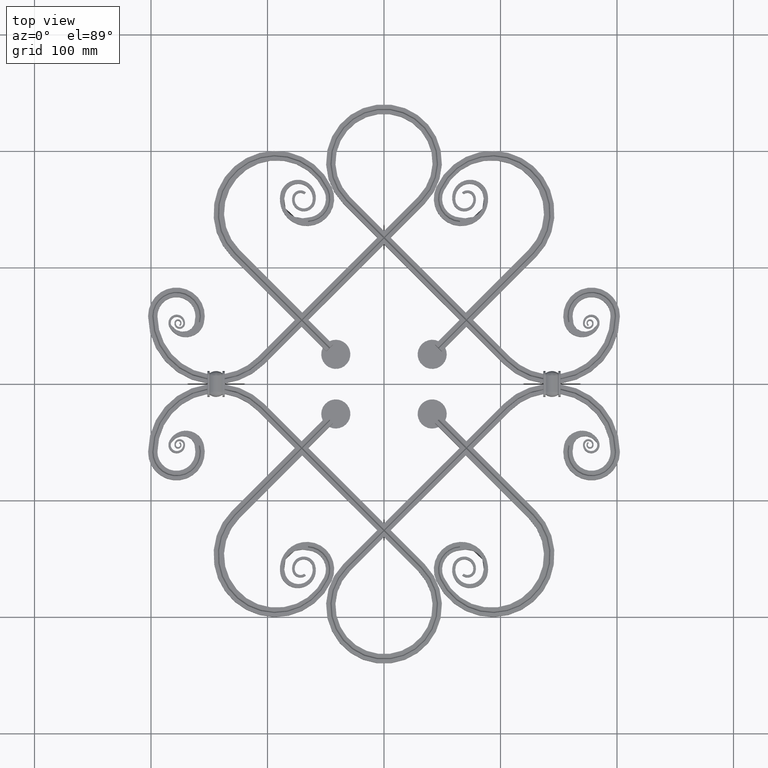
[diagram: clean part render]
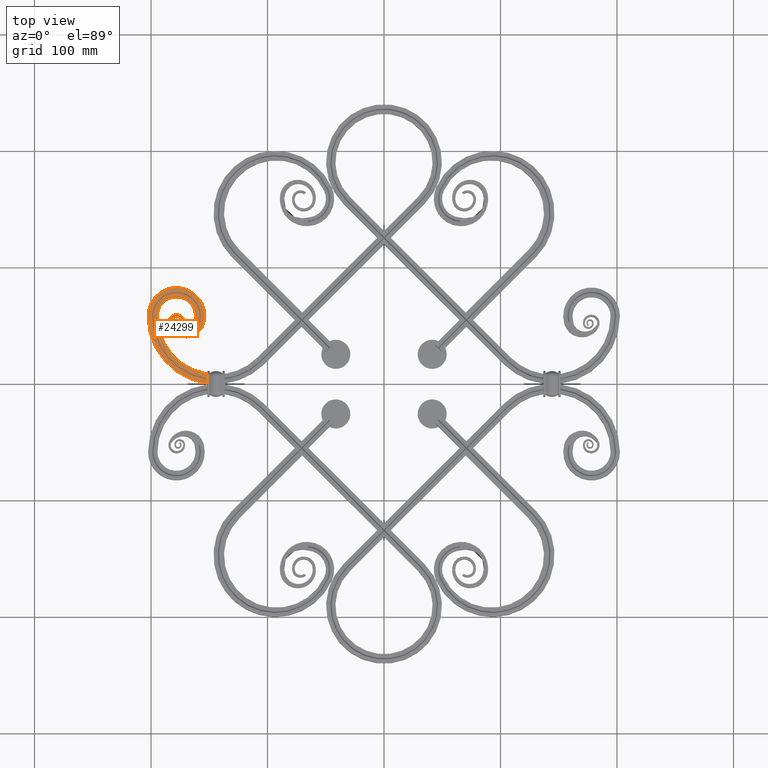
[diagram: same view with one face highlighted and labeled with its STEP entity id]
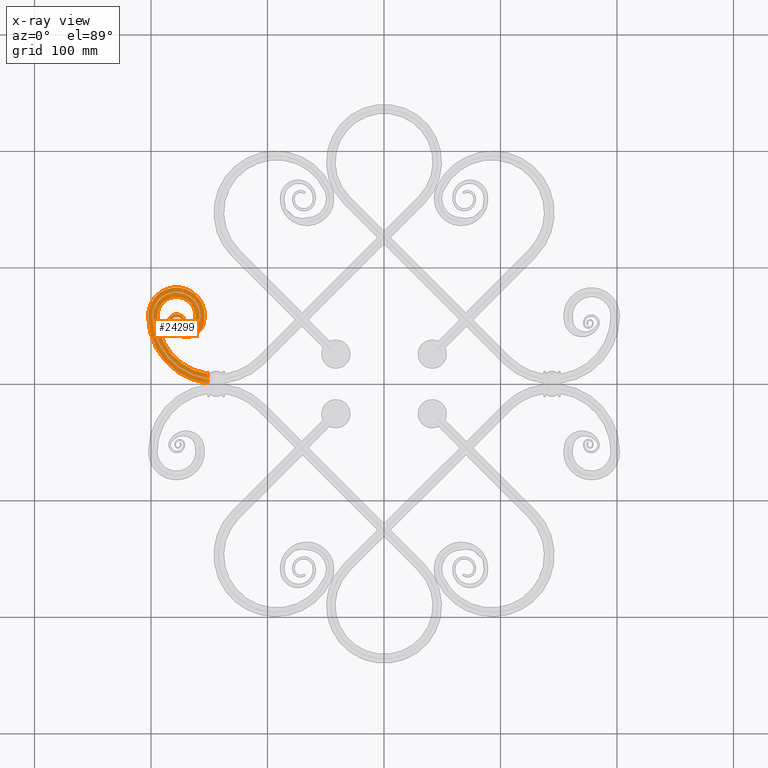
[diagram: x-ray of the same camera — body ghosted, the highlighted face saturated]
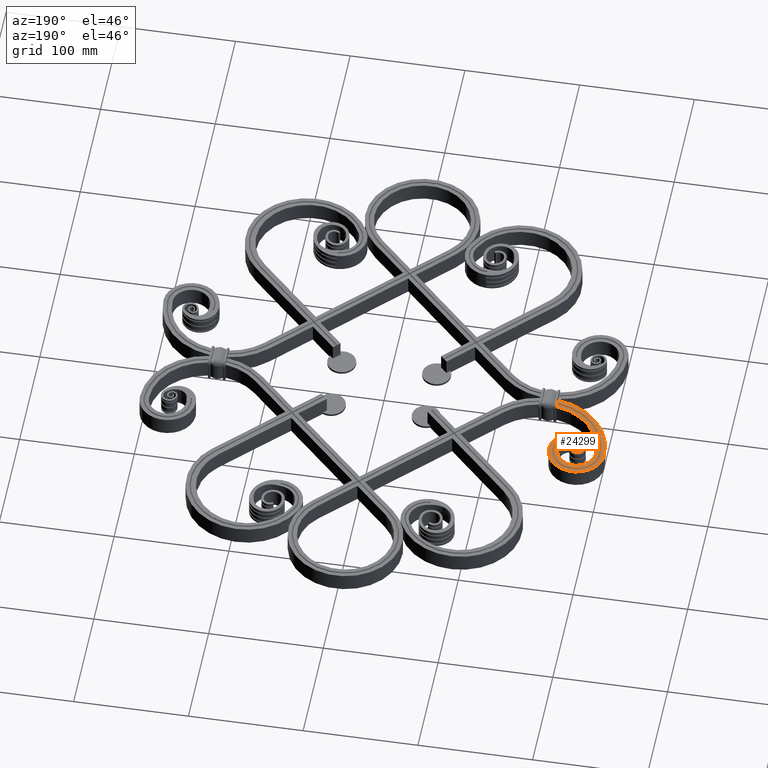
[diagram: same view with one face highlighted and labeled with its STEP entity id]
A machine part, top view. The second image highlights one B-rep face of the part: STEP entity #24299.
The next image is the same camera in x-ray: the body ghosted, the highlighted face saturated — about 0% of this face is hidden behind the body in this view.
A second angle (auxiliary view) of the same face is appended — the face is thin or edge-on in the first view.
In plain terms, the highlighted planar face has unit normal (-0, 0, -1).
Its self-contained STEP definition (entity closure, byte-faithful):
#90 = CARTESIAN_POINT ( 'NONE',  ( -154.7081428451901672, 51.96011843031541133, 7.999999999999845457 ) ) ;
#421 = VECTOR ( 'NONE', #57210, 1000.000000000000114 ) ;
#983 = CARTESIAN_POINT ( 'NONE',  ( -199.0773502691895942, 58.33630944788937711, 8.000000000000000000 ) ) ;
#1600 = CARTESIAN_POINT ( 'NONE',  ( -175.1568532153906403, 49.94557511306874176, 8.000000000000000000 ) ) ;
#1737 = CARTESIAN_POINT ( 'NONE',  ( -174.7150000176385163, 50.28066122756351319, 8.000000000000001776 ) ) ;
#1838 = CARTESIAN_POINT ( 'NONE',  ( -176.0929426898080408, 57.47724294837077252, 8.000000000000000000 ) ) ;
#2029 = CARTESIAN_POINT ( 'NONE',  ( -172.7827831079378882, 50.25968735084335748, 8.000000000000000000 ) ) ;
#2178 = ORIENTED_EDGE ( 'NONE', *, *, #35233, .T. ) ;
#2212 = CARTESIAN_POINT ( 'NONE',  ( -151.4099999999999966, 6.999999999999968026, 8.000000000000000000 ) ) ;
#2292 = DIRECTION ( 'NONE',  ( 0.000000000000000000, 0.000000000000000000, 1.000000000000000000 ) ) ;
#2329 = CARTESIAN_POINT ( 'NONE',  ( -185.0650300360007350, 52.84970780580330540, 8.000000000000001776 ) ) ;
#2443 = CARTESIAN_POINT ( 'NONE',  ( -178.1787289656059841, 58.33630944788989581, 8.000000000000000000 ) ) ;
#2526 = CARTESIAN_POINT ( 'NONE',  ( -175.3102955841640949, 55.03979556280543761, 8.000000000000000000 ) ) ;
#2601 = CARTESIAN_POINT ( 'NONE',  ( -163.9449839496908510, 48.90022599089232358, 8.000000000000001776 ) ) ;
#2727 = CARTESIAN_POINT ( 'NONE',  ( -184.3112738001923958, 49.22370615443942654, 8.000000000000000000 ) ) ;
#2808 = CARTESIAN_POINT ( 'NONE',  ( -162.4283269053816809, 54.05744007392772232, 7.999999999999894307 ) ) ;
#2826 = CARTESIAN_POINT ( 'NONE',  ( -178.5278086268865252, 51.11411714257997119, 7.999999999999996447 ) ) ;
#2942 = DIRECTION ( 'NONE',  ( 0.000000000000000000, 0.000000000000000000, 1.000000000000000000 ) ) ;
#3031 = CARTESIAN_POINT ( 'NONE',  ( -178.5727181387648272, 52.89737530895046547, 8.000000000000007105 ) ) ;
#3203 = CIRCLE ( 'NONE', #22633, 53.75895917870027318 ) ;
#3392 = AXIS2_PLACEMENT_3D ( 'NONE', #11155, #29003, #42006 ) ;
#3406 = CARTESIAN_POINT ( 'NONE',  ( -182.5100443731335531, 50.09294291798390475, 8.000000000000000000 ) ) ;
#3492 = EDGE_CURVE ( 'NONE', #56943, #21930, #24650, .T. ) ;
#4034 = CARTESIAN_POINT ( 'NONE',  ( -175.4377832328634099, 48.82063189121792846, 8.000000000000000000 ) ) ;
#4198 = CIRCLE ( 'NONE', #46287, 19.74392076520437200 ) ;
#4228 = CARTESIAN_POINT ( 'NONE',  ( -178.6678980498967633, 52.30129884058442258, 8.000000000000000000 ) ) ;
#4325 = CARTESIAN_POINT ( 'NONE',  ( -202.5000000000000000, 58.33630944788963291, 8.000000000000000000 ) ) ;
#4373 = ORIENTED_EDGE ( 'NONE', *, *, #10844, .T. ) ;
#4405 = CARTESIAN_POINT ( 'NONE',  ( -175.7150948333174654, 50.77525354234989408, 8.000000000000000000 ) ) ;
#4470 = ORIENTED_EDGE ( 'NONE', *, *, #57867, .F. ) ;
#5065 = B_SPLINE_CURVE_WITH_KNOTS ( 'NONE', 3,
 ( #10147, #29181, #1737, #10347, #56164, #33793, #6318, #5530, #51181, #37587, #42178, #46745, #2526, #43556, #56941, #20117, #6721, #6921, #11142, #25511, #47736, #39178, #11734, #7328, #16084, #34572, #52179, #48134, #16278, #38976, #29762, #48332, #11337, #11923, #11529, #57320, #30155, #52368, #20904, #24924, #29579, #43752, #20710, #39379, #52774, #25320, #15496, #43357, #34373, #47538, #24715, #15897, #2329, #29959, #56751, #2727 ),
 .UNSPECIFIED., .F., .F.,
 ( 4, 1, 1, 1, 1, 1, 1, 1, 1, 1, 1, 1, 1, 1, 1, 1, 1, 1, 1, 1, 1, 1, 1, 1, 1, 1, 1, 1, 1, 1, 1, 1, 1, 1, 1, 1, 1, 1, 1, 1, 1, 1, 1, 1, 1, 1, 1, 1, 1, 1, 1, 1, 1, 4 ),
 ( 0.000000000000000000, 0.01010302735505683863, 0.02023997654640571908, 0.03038392907417127725, 0.04047239337401119935, 0.05045738992200122369, 0.06038478629739164882, 0.07040070167941844814, 0.08046539312077433115, 0.09048825828294783380, 0.1003885645702420198, 0.1101917311375887332, 0.1200791724761820778, 0.1300300448075559223, 0.1399565951538640496, 0.1497710845239766664, 0.1594613483907861007, 0.1692222080798727601, 0.1790653176941695013, 0.1937633259593063428, 0.2084007722670631613, 0.2240955142588009485, 0.2398757235699856827, 0.2556445984775562730, 0.2713162066101842962, 0.2870170997505963051, 0.3026877023173343839, 0.3182495112426151906, 0.3338250041553817993, 0.3494146412877856545, 0.3649206880682623333, 0.3803588793111512545, 0.3958462897012593462, 0.4112943334018647201, 0.4266284004628841942, 0.4496441851050169691, 0.4725613048083287526, 0.4959254221207841096, 0.5202745282742220478, 0.5447840865031983171, 0.5691682819327615883, 0.6057142022157168126, 0.6419649666505774510, 0.6781207494120581325, 0.7143688702033148541, 0.7384331340427807699, 0.7623272295262145670, 0.7862762874309763284, 0.8222273848333736534, 0.8579115078117454107, 0.8934059620924214018, 0.9290542696022388025, 0.9644571166407900353, 1.000000000000000000 ),
 .UNSPECIFIED. ) ;
#5530 = CARTESIAN_POINT ( 'NONE',  ( -173.8390262364313799, 52.80782366361454905, 7.999999999999998224 ) ) ;
#5880 = EDGE_CURVE ( 'NONE', #40579, #28548, #56343, .T. ) ;
#6318 = CARTESIAN_POINT ( 'NONE',  ( -173.8191720590432112, 52.25009247691016157, 8.000000000000001776 ) ) ;
#6421 = CARTESIAN_POINT ( 'NONE',  ( -172.9721614066936297, 54.86129037264295505, 8.000000000000001776 ) ) ;
#6721 = CARTESIAN_POINT ( 'NONE',  ( -177.4410032705491460, 55.38974238864512500, 7.999999999999998224 ) ) ;
#6921 = CARTESIAN_POINT ( 'NONE',  ( -177.9766886981277310, 55.22666356842332647, 8.000000000000001776 ) ) ;
#7019 = CARTESIAN_POINT ( 'NONE',  ( -183.0415395848972082, 51.35284791595437781, 7.999999999999994671 ) ) ;
#7328 = CARTESIAN_POINT ( 'NONE',  ( -179.9022121383267176, 51.57976650355445969, 8.000000000000008882 ) ) ;
#7397 = CARTESIAN_POINT ( 'NONE',  ( -171.2819406207991335, 44.73866639309839144, 8.000000000000000000 ) ) ;
#7422 = CARTESIAN_POINT ( 'NONE',  ( -177.5738956098233530, 49.63147326311165841, 7.999999999999998224 ) ) ;
#7617 = CARTESIAN_POINT ( 'NONE',  ( -178.3021778329556639, 50.56602092502825485, 8.000000000000000000 ) ) ;
#8717 = ORIENTED_EDGE ( 'NONE', *, *, #13098, .F. ) ;
#8793 = CIRCLE ( 'NONE', #10829, 54.91365971707951132 ) ;
#8812 = CARTESIAN_POINT ( 'NONE',  ( -174.9217459866065951, 51.96490877128442776, 7.999999999999996447 ) ) ;
#9075 = CARTESIAN_POINT ( 'NONE',  ( -159.7610745799950962, 43.87165270378434911, 8.000000000000001776 ) ) ;
#9407 = EDGE_CURVE ( 'NONE', #55227, #20654, #5065, .T. ) ;
#9862 = CARTESIAN_POINT ( 'NONE',  ( -151.4099999999999966, 6.999999999999968026, 8.000000000000001776 ) ) ;
#10147 = CARTESIAN_POINT ( 'NONE',  ( -175.1568532153906403, 49.94557511306874176, 8.000000000000000000 ) ) ;
#10347 = CARTESIAN_POINT ( 'NONE',  ( -174.3648839189498574, 50.70901599817607774, 7.999999999999998224 ) ) ;
#10797 = CARTESIAN_POINT ( 'NONE',  ( -151.6599999999999966, 7.749999999999979572, 8.000000000000000000 ) ) ;
#10829 = AXIS2_PLACEMENT_3D ( 'NONE', #34925, #2292, #16662 ) ;
#10844 = EDGE_CURVE ( 'NONE', #48926, #48288, #4198, .T. ) ;
#10849 = CARTESIAN_POINT ( 'NONE',  ( -182.8756134754732443, 54.07307548516063633, 7.999999999999994671 ) ) ;
#10852 = EDGE_CURVE ( 'NONE', #23037, #33005, #30693, .T. ) ;
#11006 = CARTESIAN_POINT ( 'NONE',  ( -144.1636905521100971, 58.33630944788988160, 8.000000000000000000 ) ) ;
#11047 = CARTESIAN_POINT ( 'NONE',  ( -172.5411137668928916, 53.81710589245022902, 8.000000000000001776 ) ) ;
#11142 = CARTESIAN_POINT ( 'NONE',  ( -178.4639985800560282, 54.96704282961557197, 7.999999999999996447 ) ) ;
#11155 = CARTESIAN_POINT ( 'NONE',  ( -144.1636905521100971, 58.33630944788988160, 8.000000000000000000 ) ) ;
#11337 = CARTESIAN_POINT ( 'NONE',  ( -174.6293520351219684, 47.49750307667370208, 8.000000000000001776 ) ) ;
#11529 = CARTESIAN_POINT ( 'NONE',  ( -173.0779905522611841, 48.05075718025177878, 8.000000000000003553 ) ) ;
#11734 = CARTESIAN_POINT ( 'NONE',  ( -179.9014623897677154, 52.41201584143629333, 8.000000000000000000 ) ) ;
#11827 = CARTESIAN_POINT ( 'NONE',  ( -178.6506935317541149, 51.70442468598497499, 8.000000000000008882 ) ) ;
#11841 = B_SPLINE_CURVE_WITH_KNOTS ( 'NONE', 3,
 ( #90, #45681, #50093, #27098, #9075, #22673, #27896, #41120, #32120, #23064, #49890, #13657, #32519, #37102, #18253 ),
 .UNSPECIFIED., .F., .F.,
 ( 4, 1, 1, 1, 1, 1, 1, 1, 1, 1, 1, 1, 4 ),
 ( 0.000000000000000000, 0.07508536368888341084, 0.1516077414130174716, 0.2297376036064453508, 0.3092449782237627343, 0.3903889292461764082, 0.4729281177954288706, 0.5570664637888083082, 0.6426695462153083627, 0.7298016479395466050, 0.8184796539450382991, 0.9086515809516381159, 1.000000000000000000 ),
 .UNSPECIFIED. ) ;
#11923 = CARTESIAN_POINT ( 'NONE',  ( -173.8293155016194476, 47.70534574278387652, 7.999999999999996447 ) ) ;
#12024 = CARTESIAN_POINT ( 'NONE',  ( -175.6213156708302279, 50.85068442932360711, 8.000000000000001776 ) ) ;
#12163 = CARTESIAN_POINT ( 'NONE',  ( -151.6600000000000250, 7.617684761752909317, 8.000000000000000000 ) ) ;
#12319 = ORIENTED_EDGE ( 'NONE', *, *, #9407, .T. ) ;
#12519 = CARTESIAN_POINT ( 'NONE',  ( -178.1787289656059841, 58.33630944788989581, 8.000000000000000000 ) ) ;
#12547 = EDGE_CURVE ( 'NONE', #56074, #55177, #52917, .T. ) ;
#13084 = B_SPLINE_CURVE_WITH_KNOTS ( 'NONE', 3,
 ( #29074, #15992, #7019, #39078, #10849, #42875, #52087, #24627, #43061, #56651, #29278, #1838, #38688, #33892, #6421, #11047, #52274, #20213, #29481, #2029, #22422, #25615, #44061, #16795, #4034, #48236, #30258, #57621, #7422, #53064, #7617, #2826, #11827, #4228, #3031, #20804, #57426, #27038, #31464, #34860, #39480, #17799, #39685, #34665, #53266, #52871, #16594, #54453, #48632, #25819, #8812, #59032, #21204, #45254, #12024, #30059 ),
 .UNSPECIFIED., .F., .F.,
 ( 4, 1, 1, 1, 1, 1, 1, 1, 1, 1, 1, 1, 1, 1, 1, 1, 1, 1, 1, 1, 1, 1, 1, 1, 1, 1, 1, 1, 1, 1, 1, 1, 1, 1, 1, 1, 1, 1, 1, 1, 1, 1, 1, 1, 1, 1, 1, 1, 1, 1, 1, 1, 1, 4 ),
 ( 0.000000000000000000, 0.03554288335920996467, 0.07094573039776119749, 0.1065940379075785982, 0.1420884921882545893, 0.1777726151666263466, 0.2137237125690236716, 0.2376727704737854330, 0.2615668659572192301, 0.2856311297966851459, 0.3218792505879418675, 0.3580350333494225490, 0.3942857977842831874, 0.4308317180672384117, 0.4552159134968016829, 0.4797254717257779522, 0.5040745778792159459, 0.5274386951916711919, 0.5503558148949829754, 0.5733715995371158058, 0.5887056665981352799, 0.6041537102987406538, 0.6196411206888488010, 0.6350793119317377222, 0.6505853587122143455, 0.6661749958446181452, 0.6817504887573848649, 0.6973122976826655606, 0.7129829002494036949, 0.7286837933898157038, 0.7443554015224437270, 0.7601242764300143451, 0.7759044857411990792, 0.7915992277329368942, 0.8062366740406936572, 0.8209346823058305542, 0.8307777919201272399, 0.8405386516092139271, 0.8502289154760233059, 0.8600434048461359504, 0.8699699551924440222, 0.8799208275238179500, 0.8898082688624112668, 0.8996114354297579663, 0.9095117417170521801, 0.9195346068792256133, 0.9295992983205815241, 0.9396152137026083651, 0.9495426100779987832, 0.9595276066259887937, 0.9696160709258286881, 0.9797600234535942532, 0.9898969726449431406, 1.000000000000000000 ),
 .UNSPECIFIED. ) ;
#13098 = EDGE_CURVE ( 'NONE', #56683, #47627, #50016, .T. ) ;
#13657 = CARTESIAN_POINT ( 'NONE',  ( -180.5336282378087276, 44.09026493273206171, 8.000000000000003553 ) ) ;
#14390 = DIRECTION ( 'NONE',  ( -0.5582416179268131495, 0.8296784292811606454, 0.000000000000000000 ) ) ;
#14816 = ORIENTED_EDGE ( 'NONE', *, *, #15500, .T. ) ;
#14930 = ORIENTED_EDGE ( 'NONE', *, *, #53527, .F. ) ;
#15306 = EDGE_CURVE ( 'NONE', #31339, #56074, #53496, .T. ) ;
#15496 = CARTESIAN_POINT ( 'NONE',  ( -178.6328107898633277, 59.41614326746386610, 8.000000000000001776 ) ) ;
#15500 = EDGE_CURVE ( 'NONE', #21930, #48926, #24733, .T. ) ;
#15505 = DIRECTION ( 'NONE',  ( -0.000000000000000000, 0.000000000000000000, -1.000000000000000000 ) ) ;
#15856 = ORIENTED_EDGE ( 'NONE', *, *, #12547, .T. ) ;
#15897 = CARTESIAN_POINT ( 'NONE',  ( -184.6973950743156649, 54.66665057844706155, 7.999999999999994671 ) ) ;
#15992 = CARTESIAN_POINT ( 'NONE',  ( -182.6874424221006450, 50.51346352395920292, 8.000000000000001776 ) ) ;
#16084 = CARTESIAN_POINT ( 'NONE',  ( -179.7519709954959239, 50.76723379916795409, 7.999999999999996447 ) ) ;
#16278 = CARTESIAN_POINT ( 'NONE',  ( -177.8141027877726401, 48.15262662472146360, 8.000000000000000000 ) ) ;
#16329 = CARTESIAN_POINT ( 'NONE',  ( -151.6237394548695363, 7.485870404022239910, 8.000000000000000000 ) ) ;
#16594 = CARTESIAN_POINT ( 'NONE',  ( -175.1366884420839938, 53.33924278642864181, 7.999999999999998224 ) ) ;
#16662 = DIRECTION ( 'NONE',  ( -1.000000000000000000, -8.845204923073706725E-15, 0.000000000000000000 ) ) ;
#16680 = AXIS2_PLACEMENT_3D ( 'NONE', #38191, #15505, #47343 ) ;
#16712 = CARTESIAN_POINT ( 'NONE',  ( -194.4999999999999432, 58.33630944788968975, 8.000000000000000000 ) ) ;
#16795 = CARTESIAN_POINT ( 'NONE',  ( -174.8684548104083660, 48.87543652468090727, 8.000000000000001776 ) ) ;
#17799 = CARTESIAN_POINT ( 'NONE',  ( -176.5263251047135213, 54.27853389994977817, 7.999999999999998224 ) ) ;
#18103 = CARTESIAN_POINT ( 'NONE',  ( -184.3112738001923958, 49.22370615443942654, 8.000000000000000000 ) ) ;
#18253 = CARTESIAN_POINT ( 'NONE',  ( -184.3112738001923958, 49.22370615443942654, 8.000000000000000000 ) ) ;
#18653 = DIRECTION ( 'NONE',  ( -0.000000000000000000, -1.000000000000000000, -4.956352788505173129E-16 ) ) ;
#18829 = EDGE_CURVE ( 'NONE', #56943, #50356, #8793, .T. ) ;
#19112 = AXIS2_PLACEMENT_3D ( 'NONE', #51456, #19395, #28847 ) ;
#19395 = DIRECTION ( 'NONE',  ( 0.000000000000000000, 0.000000000000000000, 1.000000000000000000 ) ) ;
#19650 = AXIS2_PLACEMENT_3D ( 'NONE', #58188, #58972, #44630 ) ;
#19971 = EDGE_CURVE ( 'NONE', #33005, #47627, #25214, .T. ) ;
#20045 = ORIENTED_EDGE ( 'NONE', *, *, #10852, .T. ) ;
#20117 = CARTESIAN_POINT ( 'NONE',  ( -176.8929306353022071, 55.44635442488684873, 8.000000000000003553 ) ) ;
#20213 = CARTESIAN_POINT ( 'NONE',  ( -172.2891862704454979, 51.90060730897673835, 7.999999999999998224 ) ) ;
#20236 = CARTESIAN_POINT ( 'NONE',  ( -144.1636905521100971, 58.33630944788988160, 8.000000000000000000 ) ) ;
#20654 = VERTEX_POINT ( 'NONE', #18103 ) ;
#20710 = CARTESIAN_POINT ( 'NONE',  ( -172.4771104862242339, 57.00134354553159000, 8.000000000000000000 ) ) ;
#20770 = DIRECTION ( 'NONE',  ( -0.000000000000000000, -1.000000000000000000, -4.956352788505173129E-16 ) ) ;
#20804 = CARTESIAN_POINT ( 'NONE',  ( -178.3952706883018209, 53.36250530612596776, 7.999999999999994671 ) ) ;
#20829 = LINE ( 'NONE', #37809, #23697 ) ;
#20904 = CARTESIAN_POINT ( 'NONE',  ( -170.7720743523529734, 51.82276783429115596, 7.999999999999998224 ) ) ;
#20963 = LINE ( 'NONE', #24778, #35366 ) ;
#21204 = CARTESIAN_POINT ( 'NONE',  ( -175.2076451114998576, 51.29377710311455019, 7.999999999999998224 ) ) ;
#21537 = DIRECTION ( 'NONE',  ( -1.000000000000000000, 2.143811926576882216E-14, 0.000000000000000000 ) ) ;
#21930 = VERTEX_POINT ( 'NONE', #39479 ) ;
#22422 = CARTESIAN_POINT ( 'NONE',  ( -173.2734097602208578, 49.67628816288658555, 8.000000000000003553 ) ) ;
#22549 = AXIS2_PLACEMENT_3D ( 'NONE', #11006, #56023, #52049 ) ;
#22633 = AXIS2_PLACEMENT_3D ( 'NONE', #20236, #24843, #30087 ) ;
#22673 = CARTESIAN_POINT ( 'NONE',  ( -162.4388902888730115, 42.05824122562517431, 8.000000000000001776 ) ) ;
#23037 = VERTEX_POINT ( 'NONE', #24868 ) ;
#23064 = CARTESIAN_POINT ( 'NONE',  ( -174.9549233004420898, 40.92555360012937626, 8.000000000000000000 ) ) ;
#23697 = VECTOR ( 'NONE', #32628, 1000.000000000000000 ) ;
#24299 = ADVANCED_FACE ( 'NONE', ( #49439 ), #56369, .F. ) ;
#24627 = CARTESIAN_POINT ( 'NONE',  ( -180.3553202889017371, 57.06994492966622801, 8.000000000000000000 ) ) ;
#24650 = CIRCLE ( 'NONE', #19650, 20.89862130358363501 ) ;
#24715 = CARTESIAN_POINT ( 'NONE',  ( -183.8569359329703445, 56.35815978364507828, 8.000000000000001776 ) ) ;
#24733 = LINE ( 'NONE', #48425, #421 ) ;
#24778 = CARTESIAN_POINT ( 'NONE',  ( -151.4099999999999966, 6.999999999999968026, 8.000000000000001776 ) ) ;
#24843 = DIRECTION ( 'NONE',  ( -0.000000000000000000, -0.000000000000000000, -1.000000000000000000 ) ) ;
#24868 = CARTESIAN_POINT ( 'NONE',  ( -151.6599999999999966, 8.561321818607616763, 8.000000000000000000 ) ) ;
#24924 = CARTESIAN_POINT ( 'NONE',  ( -170.8111441241160264, 53.04467204060730268, 8.000000000000000000 ) ) ;
#25034 = DIRECTION ( 'NONE',  ( -0.000000000000000000, -0.000000000000000000, -1.000000000000000000 ) ) ;
#25214 = CIRCLE ( 'NONE', #52650, 16.32127103439404081 ) ;
#25320 = CARTESIAN_POINT ( 'NONE',  ( -177.1847763062645811, 59.42840575261428882, 7.999999999999998224 ) ) ;
#25511 = CARTESIAN_POINT ( 'NONE',  ( -178.9661086456601993, 54.56931401221319078, 8.000000000000005329 ) ) ;
#25563 = CARTESIAN_POINT ( 'NONE',  ( -151.5290727441002048, 7.237675551965585541, 8.000000000000000000 ) ) ;
#25615 = CARTESIAN_POINT ( 'NONE',  ( -173.7990629517790069, 49.28578237989311361, 8.000000000000003553 ) ) ;
#25793 = CARTESIAN_POINT ( 'NONE',  ( -181.9576126100520810, 49.33535762344434517, 8.000000000000000000 ) ) ;
#25819 = CARTESIAN_POINT ( 'NONE',  ( -174.8757975810030416, 52.31742808499515718, 8.000000000000001776 ) ) ;
#26370 = ORIENTED_EDGE ( 'NONE', *, *, #19971, .T. ) ;
#26400 = CARTESIAN_POINT ( 'NONE',  ( -180.7335697494246460, 47.96439932645616011, 7.999999999999996447 ) ) ;
#27038 = CARTESIAN_POINT ( 'NONE',  ( -177.8116647757116482, 53.97952203661512982, 7.999999999999996447 ) ) ;
#27098 = CARTESIAN_POINT ( 'NONE',  ( -157.5244838752331589, 46.17863642634107180, 7.999999999999996447 ) ) ;
#27896 = CARTESIAN_POINT ( 'NONE',  ( -165.4092074703061712, 40.82370224221971711, 7.999999999999998224 ) ) ;
#27987 = LINE ( 'NONE', #42068, #30116 ) ;
#28548 = VERTEX_POINT ( 'NONE', #2212 ) ;
#28847 = DIRECTION ( 'NONE',  ( -1.000000000000000000, 0.000000000000000000, 0.000000000000000000 ) ) ;
#29003 = DIRECTION ( 'NONE',  ( -0.000000000000000000, -0.000000000000000000, -1.000000000000000000 ) ) ;
#29074 = CARTESIAN_POINT ( 'NONE',  ( -182.5100443731335531, 50.09294291798390475, 8.000000000000000000 ) ) ;
#29181 = CARTESIAN_POINT ( 'NONE',  ( -175.0097334721277207, 50.05714561518626482, 8.000000000000001776 ) ) ;
#29278 = CARTESIAN_POINT ( 'NONE',  ( -177.3487799516809673, 57.70861885864903229, 7.999999999999998224 ) ) ;
#29481 = CARTESIAN_POINT ( 'NONE',  ( -172.4287715743919307, 51.02551880647087046, 8.000000000000003553 ) ) ;
#29579 = CARTESIAN_POINT ( 'NONE',  ( -171.0425979062181057, 54.26042411012868882, 8.000000000000001776 ) ) ;
#29762 = CARTESIAN_POINT ( 'NONE',  ( -176.2851754478081716, 47.53406200303574991, 7.999999999999994671 ) ) ;
#29959 = CARTESIAN_POINT ( 'NONE',  ( -184.9935253769297958, 50.95160116407983253, 7.999999999999994671 ) ) ;
#30034 = CARTESIAN_POINT ( 'NONE',  ( -162.4433023187364427, 53.48766330224749055, 7.999999999999998224 ) ) ;
#30059 = CARTESIAN_POINT ( 'NONE',  ( -175.7150948333174654, 50.77525354234989408, 8.000000000000000000 ) ) ;
#30087 = DIRECTION ( 'NONE',  ( -1.000000000000000000, 0.000000000000000000, 0.000000000000000000 ) ) ;
#30116 = VECTOR ( 'NONE', #14390, 1000.000000000000227 ) ;
#30155 = CARTESIAN_POINT ( 'NONE',  ( -171.5508226847859987, 49.44075827950720026, 8.000000000000000000 ) ) ;
#30200 = CARTESIAN_POINT ( 'NONE',  ( -151.4099999999999966, 6.999999999999968026, 8.000000000000000000 ) ) ;
#30258 = CARTESIAN_POINT ( 'NONE',  ( -176.5782339334710969, 49.03025415707897849, 8.000000000000001776 ) ) ;
#30541 = VECTOR ( 'NONE', #18653, 1000.000000000000000 ) ;
#30693 = CIRCLE ( 'NONE', #3392, 50.33630944788986028 ) ;
#31339 = VERTEX_POINT ( 'NONE', #41121 ) ;
#31427 = EDGE_CURVE ( 'NONE', #50356, #55177, #44822, .T. ) ;
#31464 = CARTESIAN_POINT ( 'NONE',  ( -177.5203399721839048, 54.14491745871768558, 8.000000000000001776 ) ) ;
#31477 = ORIENTED_EDGE ( 'NONE', *, *, #5880, .F. ) ;
#31852 = CARTESIAN_POINT ( 'NONE',  ( -151.4099999999999966, 5.067963393571815800, 7.999999999999974243 ) ) ;
#32120 = CARTESIAN_POINT ( 'NONE',  ( -171.8014662995352069, 40.24269721158835011, 8.000000000000000000 ) ) ;
#32519 = CARTESIAN_POINT ( 'NONE',  ( -182.7380291575991009, 46.44996915222000666, 7.999999999999996447 ) ) ;
#32628 = DIRECTION ( 'NONE',  ( 1.283298645648779388E-16, -1.000000000000000000, 0.000000000000000000 ) ) ;
#33005 = VERTEX_POINT ( 'NONE', #16712 ) ;
#33793 = CARTESIAN_POINT ( 'NONE',  ( -173.9073524286380348, 51.70437249067936847, 7.999999999999996447 ) ) ;
#33873 = CARTESIAN_POINT ( 'NONE',  ( -182.5100443731335531, 50.09294291798390475, 8.000000000000000000 ) ) ;
#33892 = CARTESIAN_POINT ( 'NONE',  ( -173.7096757987584681, 55.93334223983656273, 8.000000000000000000 ) ) ;
#34290 = DIRECTION ( 'NONE',  ( -1.000000000000000000, 0.000000000000000000, 0.000000000000000000 ) ) ;
#34373 = CARTESIAN_POINT ( 'NONE',  ( -181.2135987810454765, 58.65956214967895477, 8.000000000000000000 ) ) ;
#34414 = CARTESIAN_POINT ( 'NONE',  ( -151.6599999999999966, 7.749999999999979572, 8.000000000000000000 ) ) ;
#34572 = CARTESIAN_POINT ( 'NONE',  ( -179.4540176724565015, 49.98802419101608763, 8.000000000000000000 ) ) ;
#34645 = CARTESIAN_POINT ( 'NONE',  ( -162.4735397509589063, 52.33720514076121333, 7.999999999999996447 ) ) ;
#34665 = CARTESIAN_POINT ( 'NONE',  ( -175.8659100967406346, 54.06554823007506627, 8.000000000000000000 ) ) ;
#34860 = CARTESIAN_POINT ( 'NONE',  ( -177.2110466663489206, 54.24926896545739652, 7.999999999999998224 ) ) ;
#34925 = CARTESIAN_POINT ( 'NONE',  ( -144.1636905521100971, 58.33630944788988160, 8.000000000000000000 ) ) ;
#35121 = ORIENTED_EDGE ( 'NONE', *, *, #18829, .F. ) ;
#35233 = EDGE_CURVE ( 'NONE', #56683, #41759, #13084, .T. ) ;
#35366 = VECTOR ( 'NONE', #20770, 1000.000000000000000 ) ;
#35425 = CARTESIAN_POINT ( 'NONE',  ( -169.0105981805283761, 45.22038711189325966, 8.000000000000003553 ) ) ;
#35674 = CARTESIAN_POINT ( 'NONE',  ( -197.9226497308103490, 58.33630944788940553, 8.000000000000000000 ) ) ;
#36122 = ORIENTED_EDGE ( 'NONE', *, *, #38572, .F. ) ;
#36593 = ORIENTED_EDGE ( 'NONE', *, *, #38018, .F. ) ;
#36906 = CARTESIAN_POINT ( 'NONE',  ( -151.4099999999999966, 3.902854450906406925, 8.000000000000000000 ) ) ;
#37102 = CARTESIAN_POINT ( 'NONE',  ( -183.8382605729495083, 48.24760426331103957, 8.000000000000000000 ) ) ;
#37341 = ORIENTED_EDGE ( 'NONE', *, *, #48429, .F. ) ;
#37587 = CARTESIAN_POINT ( 'NONE',  ( -174.1758272754524910, 53.85161310234123277, 7.999999999999998224 ) ) ;
#37809 = CARTESIAN_POINT ( 'NONE',  ( -151.6599999999999966, 58.33630944788989581, 8.000000000000000000 ) ) ;
#38018 = EDGE_CURVE ( 'NONE', #23037, #40579, #20829, .T. ) ;
#38191 = CARTESIAN_POINT ( 'NONE',  ( -178.1787289656059841, 58.33630944788989581, 8.000000000000000000 ) ) ;
#38572 = EDGE_CURVE ( 'NONE', #55227, #41759, #27987, .T. ) ;
#38688 = CARTESIAN_POINT ( 'NONE',  ( -174.7985629888790413, 56.87171821931846694, 7.999999999999996447 ) ) ;
#38976 = CARTESIAN_POINT ( 'NONE',  ( -177.0759846510116517, 47.77442373492686301, 8.000000000000001776 ) ) ;
#39078 = CARTESIAN_POINT ( 'NONE',  ( -183.1197870418412776, 52.71581884302658949, 8.000000000000001776 ) ) ;
#39178 = CARTESIAN_POINT ( 'NONE',  ( -179.7682087133457003, 53.19288289221285027, 8.000000000000007105 ) ) ;
#39379 = CARTESIAN_POINT ( 'NONE',  ( -173.8739398494867885, 58.26135235796019884, 7.999999999999996447 ) ) ;
#39421 = CARTESIAN_POINT ( 'NONE',  ( -151.4700146054912295, 7.120031611611250533, 8.000000000000000000 ) ) ;
#39460 = CARTESIAN_POINT ( 'NONE',  ( -166.9902267267613922, 46.12611710225411343, 7.999999999999998224 ) ) ;
#39479 = CARTESIAN_POINT ( 'NONE',  ( -158.0110785821177899, 52.85741810018197384, 7.999999999999989342 ) ) ;
#39480 = CARTESIAN_POINT ( 'NONE',  ( -176.8741201467869928, 54.29477385406897838, 8.000000000000003553 ) ) ;
#39685 = CARTESIAN_POINT ( 'NONE',  ( -176.1846889426295206, 54.20113849300971509, 7.999999999999994671 ) ) ;
#40579 = VERTEX_POINT ( 'NONE', #10797 ) ;
#41120 = CARTESIAN_POINT ( 'NONE',  ( -168.5810904255642697, 40.20940186502279801, 8.000000000000003553 ) ) ;
#41121 = CARTESIAN_POINT ( 'NONE',  ( -154.7081428451901672, 51.96011843031541133, 7.999999999999845457 ) ) ;
#41531 = ORIENTED_EDGE ( 'NONE', *, *, #15306, .T. ) ;
#41759 = VERTEX_POINT ( 'NONE', #4405 ) ;
#42006 = DIRECTION ( 'NONE',  ( 1.000000000000000000, 0.000000000000000000, 0.000000000000000000 ) ) ;
#42068 = CARTESIAN_POINT ( 'NONE',  ( -175.1568532153906403, 49.94557511306874176, 8.000000000000000000 ) ) ;
#42178 = CARTESIAN_POINT ( 'NONE',  ( -174.4758280836228721, 54.31296523960346434, 8.000000000000000000 ) ) ;
#42875 = CARTESIAN_POINT ( 'NONE',  ( -182.2921960024092982, 55.31106737323776201, 8.000000000000001776 ) ) ;
#43061 = CARTESIAN_POINT ( 'NONE',  ( -179.3513271419919874, 57.48216652485243827, 7.999999999999996447 ) ) ;
#43357 = CARTESIAN_POINT ( 'NONE',  ( -179.8624561770378421, 59.18244488725889596, 7.999999999999996447 ) ) ;
#43556 = CARTESIAN_POINT ( 'NONE',  ( -175.8113050878928334, 55.26858188825995910, 7.999999999999994671 ) ) ;
#43752 = CARTESIAN_POINT ( 'NONE',  ( -171.5682733654272738, 55.61681599943504750, 8.000000000000001776 ) ) ;
#44034 = CARTESIAN_POINT ( 'NONE',  ( -165.2761384152482833, 47.38502292312120545, 8.000000000000001776 ) ) ;
#44061 = CARTESIAN_POINT ( 'NONE',  ( -174.3138378925728489, 49.03306999009401324, 7.999999999999996447 ) ) ;
#44245 = CARTESIAN_POINT ( 'NONE',  ( -163.0113172008185245, 50.58498385849066636, 7.999999999999996447 ) ) ;
#44439 = CARTESIAN_POINT ( 'NONE',  ( -176.1576523389421993, 45.27840861086274060, 8.000000000000000000 ) ) ;
#44630 = DIRECTION ( 'NONE',  ( -1.000000000000000000, 0.000000000000000000, 0.000000000000000000 ) ) ;
#44632 = CARTESIAN_POINT ( 'NONE',  ( -173.6973439000294945, 44.74690985276345856, 8.000000000000000000 ) ) ;
#44822 = LINE ( 'NONE', #9862, #30541 ) ;
#45254 = CARTESIAN_POINT ( 'NONE',  ( -175.4334424737599534, 51.00179946935745079, 8.000000000000001776 ) ) ;
#45681 = CARTESIAN_POINT ( 'NONE',  ( -155.0514785797821844, 50.94098629275315204, 7.999999999999998224 ) ) ;
#46287 = AXIS2_PLACEMENT_3D ( 'NONE', #12519, #2942, #21537 ) ;
#46745 = CARTESIAN_POINT ( 'NONE',  ( -174.8548445573566994, 54.71498822479299662, 7.999999999999996447 ) ) ;
#46809 = CARTESIAN_POINT ( 'NONE',  ( -151.4099999999999966, 0.4518037543504924147, 7.999999999999998224 ) ) ;
#47343 = DIRECTION ( 'NONE',  ( -1.000000000000000000, 0.000000000000000000, 0.000000000000000000 ) ) ;
#47520 = CARTESIAN_POINT ( 'NONE',  ( -159.1253911684540583, 53.16014040406118113, 8.000000000000010658 ) ) ;
#47538 = CARTESIAN_POINT ( 'NONE',  ( -182.5983993476105809, 57.74869142996305271, 7.999999999999996447 ) ) ;
#47627 = VERTEX_POINT ( 'NONE', #59105 ) ;
#47736 = CARTESIAN_POINT ( 'NONE',  ( -179.4364300158463266, 54.00040240946280079, 7.999999999999994671 ) ) ;
#48134 = CARTESIAN_POINT ( 'NONE',  ( -178.4723369237174779, 48.66454429953698479, 7.999999999999998224 ) ) ;
#48236 = CARTESIAN_POINT ( 'NONE',  ( -176.0140691153565911, 48.87348446818249670, 7.999999999999994671 ) ) ;
#48288 = VERTEX_POINT ( 'NONE', #35674 ) ;
#48332 = CARTESIAN_POINT ( 'NONE',  ( -175.4609040984232422, 47.43781396075168999, 8.000000000000000000 ) ) ;
#48425 = CARTESIAN_POINT ( 'NONE',  ( -162.4283269053817094, 54.05744007392773653, 8.000000000000000000 ) ) ;
#48429 = EDGE_CURVE ( 'NONE', #28548, #50876, #20963, .T. ) ;
#48632 = CARTESIAN_POINT ( 'NONE',  ( -174.8984225874411322, 52.66509868932585192, 7.999999999999998224 ) ) ;
#48926 = VERTEX_POINT ( 'NONE', #47520 ) ;
#49439 = FACE_OUTER_BOUND ( 'NONE', #52285, .T. ) ;
#49890 = CARTESIAN_POINT ( 'NONE',  ( -177.9068785382790452, 42.22496948002095962, 8.000000000000000000 ) ) ;
#50016 = B_SPLINE_CURVE_WITH_KNOTS ( 'NONE', 3,
 ( #3406, #25793, #26400, #53440, #44439, #44632, #7397, #35425, #39460, #44034, #2601, #44245, #34645, #30034, #2808 ),
 .UNSPECIFIED., .F., .F.,
 ( 4, 1, 1, 1, 1, 1, 1, 1, 1, 1, 1, 1, 4 ),
 ( 0.000000000000000000, 0.09134841904836184245, 0.1815203460549616732, 0.2701983520604533395, 0.3573304537846916373, 0.4429335362111916918, 0.5270718822045711294, 0.6096110707538235918, 0.6907550217762372657, 0.7702623963935546492, 0.8483922585869825284, 0.9249146363111165892, 1.000000000000000000 ),
 .UNSPECIFIED. ) ;
#50093 = CARTESIAN_POINT ( 'NONE',  ( -155.7447209470105633, 48.88321745490827652, 7.999999999999996447 ) ) ;
#50356 = VERTEX_POINT ( 'NONE', #36906 ) ;
#50876 = VERTEX_POINT ( 'NONE', #31852 ) ;
#51181 = CARTESIAN_POINT ( 'NONE',  ( -173.9612215615273101, 53.34460625455903937, 8.000000000000003553 ) ) ;
#51456 = CARTESIAN_POINT ( 'NONE',  ( -178.1787289656059841, 58.33630944788989581, 8.000000000000000000 ) ) ;
#52049 = DIRECTION ( 'NONE',  ( 1.000000000000000000, 0.000000000000000000, 0.000000000000000000 ) ) ;
#52087 = CARTESIAN_POINT ( 'NONE',  ( -181.3860218526158690, 56.35958583956126944, 7.999999999999996447 ) ) ;
#52179 = CARTESIAN_POINT ( 'NONE',  ( -179.0216045969579852, 49.28254391622970587, 8.000000000000000000 ) ) ;
#52274 = CARTESIAN_POINT ( 'NONE',  ( -172.3377482926767357, 52.86088393015382536, 8.000000000000000000 ) ) ;
#52285 = EDGE_LOOP ( 'NONE', ( #36593, #20045, #26370, #8717, #2178, #36122, #12319, #4470, #41531, #15856, #58760, #35121, #58597, #14816, #4373, #14930, #37341, #31477 ) ) ;
#52368 = CARTESIAN_POINT ( 'NONE',  ( -170.9925336069987907, 50.57988597428128230, 8.000000000000003553 ) ) ;
#52650 = AXIS2_PLACEMENT_3D ( 'NONE', #2443, #25034, #34290 ) ;
#52774 = CARTESIAN_POINT ( 'NONE',  ( -175.5596713846931038, 59.09403249554456750, 8.000000000000000000 ) ) ;
#52871 = CARTESIAN_POINT ( 'NONE',  ( -175.3397746865458089, 53.63284047204368932, 8.000000000000000000 ) ) ;
#52917 = CIRCLE ( 'NONE', #22549, 58.33630944788993844 ) ;
#53064 = CARTESIAN_POINT ( 'NONE',  ( -177.9790951889575297, 50.06496627370574259, 8.000000000000000000 ) ) ;
#53266 = CARTESIAN_POINT ( 'NONE',  ( -175.5859077127961996, 53.87819428620692008, 7.999999999999996447 ) ) ;
#53440 = CARTESIAN_POINT ( 'NONE',  ( -178.5415401947334999, 46.35506502158258968, 8.000000000000003553 ) ) ;
#53496 = CIRCLE ( 'NONE', #19112, 24.32127103439404792 ) ;
#53527 = EDGE_CURVE ( 'NONE', #50876, #48288, #3203, .T. ) ;
#54453 = CARTESIAN_POINT ( 'NONE',  ( -174.9869741369332985, 53.01159739256934245, 8.000000000000003553 ) ) ;
#55177 = VERTEX_POINT ( 'NONE', #46809 ) ;
#55227 = VERTEX_POINT ( 'NONE', #1600 ) ;
#56023 = DIRECTION ( 'NONE',  ( 0.000000000000000000, 0.000000000000000000, 1.000000000000000000 ) ) ;
#56074 = VERTEX_POINT ( 'NONE', #4325 ) ;
#56164 = CARTESIAN_POINT ( 'NONE',  ( -174.0912102715320486, 51.18575625245247807, 8.000000000000003553 ) ) ;
#56343 = B_SPLINE_CURVE_WITH_KNOTS ( 'NONE', 3,
 ( #34414, #12163, #16329, #25563, #39421, #30200 ),
 .UNSPECIFIED., .F., .F.,
 ( 4, 2, 4 ),
 ( 0.0005806270272796495774, 0.0009832236814192672324, 0.001385820335558884996 ),
 .UNSPECIFIED. ) ;
#56369 = PLANE ( 'NONE',  #16680 ) ;
#56651 = CARTESIAN_POINT ( 'NONE',  ( -178.4464506971796993, 57.67447464728213902, 8.000000000000001776 ) ) ;
#56683 = VERTEX_POINT ( 'NONE', #33873 ) ;
#56751 = CARTESIAN_POINT ( 'NONE',  ( -184.5389900541475754, 49.80042857215040186, 8.000000000000001776 ) ) ;
#56941 = CARTESIAN_POINT ( 'NONE',  ( -176.3443148076535181, 55.40523707427887246, 7.999999999999998224 ) ) ;
#56943 = VERTEX_POINT ( 'NONE', #983 ) ;
#57210 = DIRECTION ( 'NONE',  ( -0.9650230075239407679, 0.2621652054515398733, -0.000000000000000000 ) ) ;
#57320 = CARTESIAN_POINT ( 'NONE',  ( -172.2835188628966137, 48.61273190994905491, 8.000000000000003553 ) ) ;
#57426 = CARTESIAN_POINT ( 'NONE',  ( -178.1155473536389877, 53.72549672137809296, 8.000000000000005329 ) ) ;
#57621 = CARTESIAN_POINT ( 'NONE',  ( -177.1049467298196589, 49.28476525009565989, 8.000000000000000000 ) ) ;
#57867 = EDGE_CURVE ( 'NONE', #31339, #20654, #11841, .T. ) ;
#58188 = CARTESIAN_POINT ( 'NONE',  ( -178.1787289656059841, 58.33630944788989581, 8.000000000000000000 ) ) ;
#58597 = ORIENTED_EDGE ( 'NONE', *, *, #3492, .T. ) ;
#58760 = ORIENTED_EDGE ( 'NONE', *, *, #31427, .F. ) ;
#58972 = DIRECTION ( 'NONE',  ( -0.000000000000000000, -0.000000000000000000, -1.000000000000000000 ) ) ;
#59032 = CARTESIAN_POINT ( 'NONE',  ( -175.0335407724350887, 51.61796448103395107, 8.000000000000003553 ) ) ;
#59105 = CARTESIAN_POINT ( 'NONE',  ( -162.4283269053816809, 54.05744007392772232, 7.999999999999894307 ) ) ;